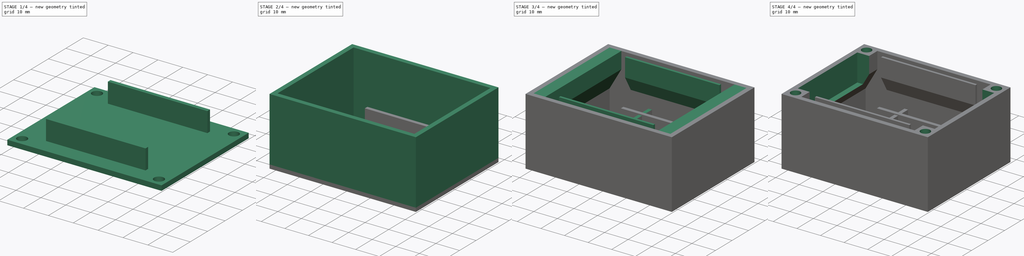
[diagram: build sequence overview — one tinted view per stage of 4, left to right]
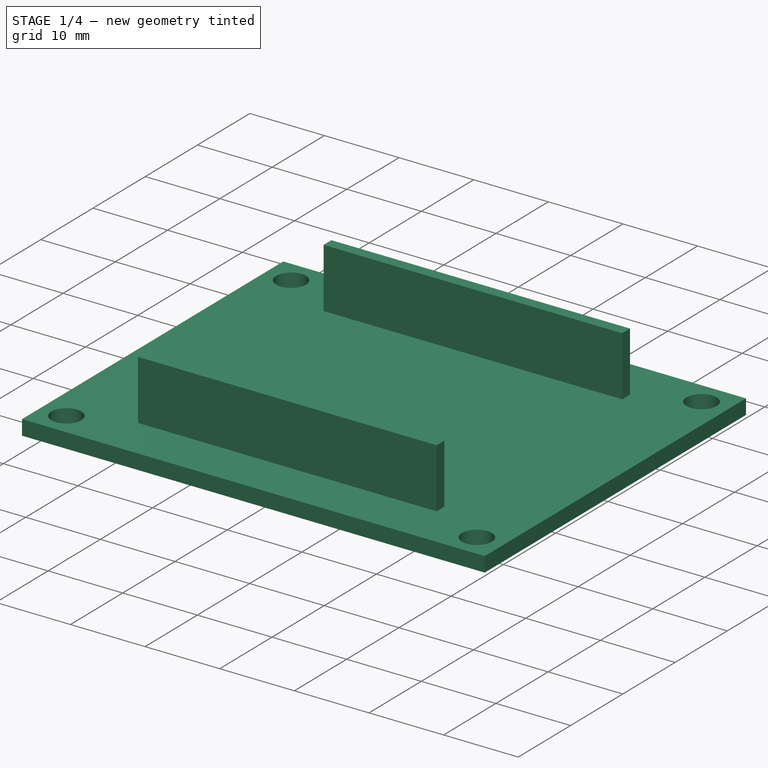
[diagram: stage 1 of 4 — iso view after this stage's code; geometry added in this stage tinted green]
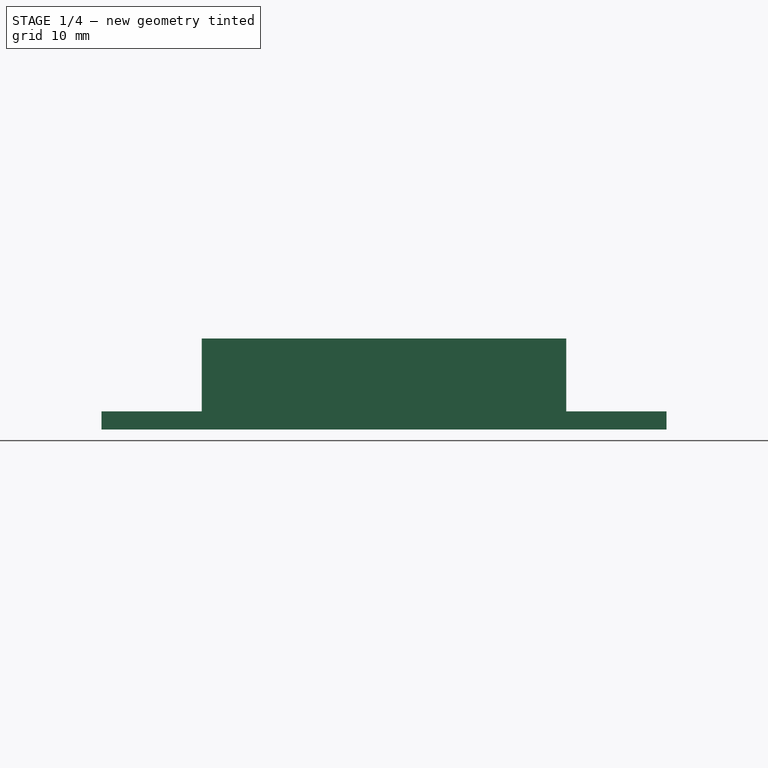
[diagram: stage 1 of 4 — front view after this stage's code; geometry added in this stage tinted green]
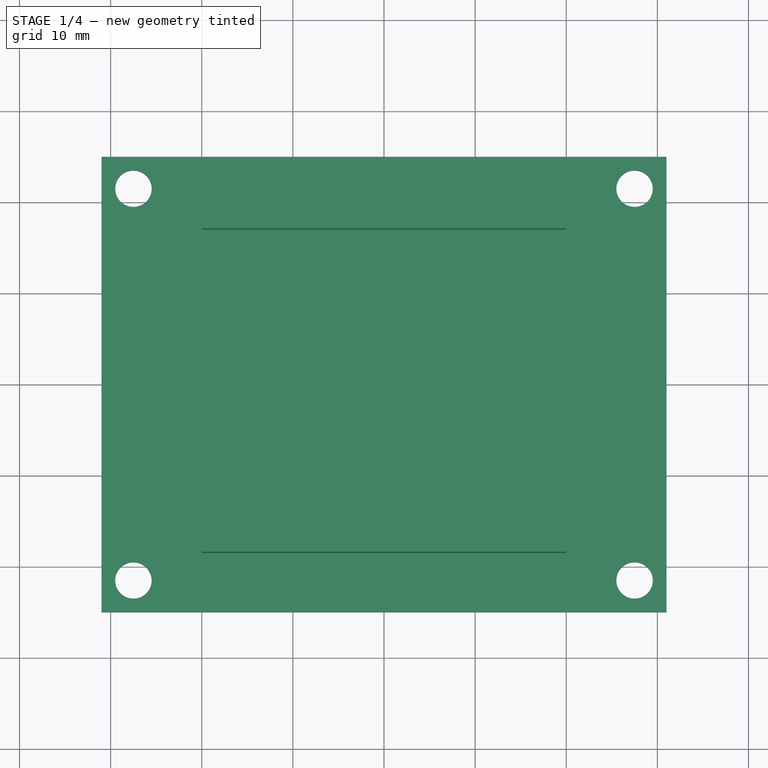
[diagram: stage 1 of 4 — top view after this stage's code; geometry added in this stage tinted green]
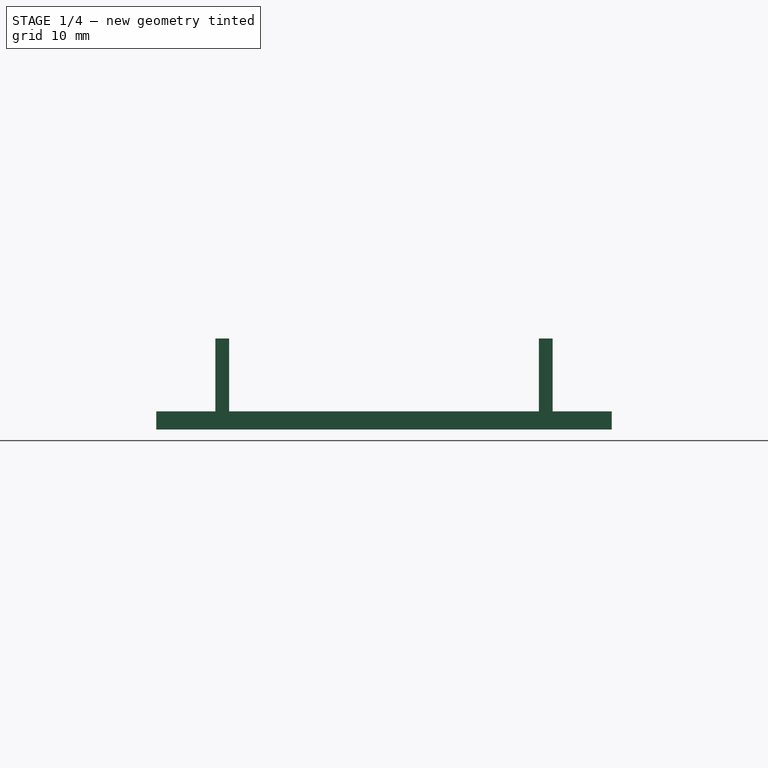
[diagram: stage 1 of 4 — right view after this stage's code; geometry added in this stage tinted green]
FCSTD DOCUMENT  (FreeCAD 0.21R33694 (Git))
Label: RAKTracker-V3
License: All rights reserved
LicenseURL: https://en.wikipedia.org/wiki/All_rights_reserved
objects: Sketcher::SketchObject×12, PartDesign::Pad×10, PartDesign::Body×3, PartDesign::Pocket×2, Spreadsheet::Sheet×1, PartDesign::Plane×1
note: 40 computed .brp shape members not serialized (recipe doc carries the construction recipe); baked Part::Feature solids carry a one-line shape summary decoded from their .brp

FEATURE [PartDesign::Body] Body  label="Box"
  Group = -> [Sketch,Pad,Sketch001,Pad001,Sketch002,Pad002,Sketch003,Pad003,Sketch004,Pad004,DatumPlane,Pad005,Sketch005,Sketch006,Pocket,Sketch007,Pocket001,Sketch008,Pad006]
  Origin = -> Origin
  Tip = -> Pad006
FEATURE [Sketcher::SketchObject] Sketch010  label="BaseSketch001"
  FullyConstrained = true
  MapMode = 5
  Support = -> [XY_Plane002]
  expr: Constraints[28] = <<RAKTrackerSmallSheet>>.BatWidth + 2 * <<RAKTrackerSmallSheet>>.BoxInternalWallThickness
  expr: Constraints[29] = <<RAKTrackerSmallSheet>>.BoxRimWidth + 3 mm
  expr: Constraints[2] = <<RAKTrackerSmallSheet>>.BatLength
  expr: Constraints[4] = <<RAKTrackerSmallSheet>>.BatWidth
  sketch-geometry (12):
    g0: LineSegment StartX=28.5 StartY=17 StartZ=0 EndX=28.5 EndY=-17 EndZ=0
    g1: LineSegment StartX=-28.5 StartY=-17 StartZ=0 EndX=-28.5 EndY=17 EndZ=0
    g2: LineSegment StartX=-18.5 StartY=17 StartZ=0 EndX=-18.5 EndY=18.5 EndZ=0
    g3: LineSegment StartX=-18.5 StartY=18.5 StartZ=0 EndX=18.5 EndY=18.5 EndZ=0
    g4: LineSegment StartX=18.5 StartY=18.5 StartZ=0 EndX=18.5 EndY=17 EndZ=0
    g5: LineSegment StartX=18.5 StartY=-17 StartZ=0 EndX=18.5 EndY=-18.5 EndZ=0
    g6: LineSegment StartX=18.5 StartY=-18.5 StartZ=0 EndX=-18.5 EndY=-18.5 EndZ=0
    g7: LineSegment StartX=-18.5 StartY=-18.5 StartZ=0 EndX=-18.5 EndY=-17 EndZ=0
    g8: LineSegment StartX=-28.5 StartY=17 StartZ=0 EndX=-18.5 EndY=17 EndZ=0
    g9: LineSegment StartX=18.5 StartY=17 StartZ=0 EndX=28.5 EndY=17 EndZ=0
    g10: LineSegment StartX=28.5 StartY=-17 StartZ=0 EndX=18.5 EndY=-17 EndZ=0
    g11: LineSegment StartX=-18.5 StartY=-17 StartZ=0 EndX=-28.5 EndY=-17 EndZ=0
  constraints (33):
    c: Vertical(g0)
    c: Vertical(g1)
    c: DistanceX(g1,g0) = 57
    c: Symmetric(g1,g0,g-1)
    c: DistanceY(g1,g1) = 34
    c: Vertical(g2)
    c: Coincident(g3,g2)
    c: Horizontal(g3)
    c: Coincident(g4,g3)
    c: Vertical(g4)
    c: Coincident(g7,g6)
    c: Vertical(g7)
    c: Vertical(g5)
    c: Horizontal(g6)
    c: Coincident(g8,g1)
    c: Coincident(g8,g2)
    c: Horizontal(g8)
    c: Coincident(g9,g4)
    c: Coincident(g9,g0)
    c: Horizontal(g9)
    c: Coincident(g10,g0)
    c: Coincident(g10,g5)
    c: Horizontal(g10)
    c: Coincident(g11,g7)
    c: Coincident(g11,g1)
    c: Horizontal(g11)
    c: Symmetric(g2,g5,g-1)
    c: Coincident(g5,g6)
    c: DistanceY(g6,g2) = 37
    c: DistanceX(g8,g8) = 10
    c: Symmetric(g2,g7,g-1)
    c: Horizontal(g4,g2)
    c: Equal(g9,g8)
FEATURE [PartDesign::Pad] Pad008  label="BatCaseBase"
  Direction = (0,0,1)
  Length = 1.5
  Length2 = 10
  Profile = -> Sketch010
  ReferenceAxis = -> Sketch010 [N_Axis]
  Type = 0
  expr: Length = <<RAKTrackerSmallSheet>>.BoxInternalWallThickness
FEATURE [Sketcher::SketchObject] Sketch011  label="BatCaseWallSketch"
  ExternalGeometry = -> [Sketch010]
  FullyConstrained = true
  MapMode = 5
  Placement = pos=(0,0,0) rot=(0.57735,0.57735,0.57735;2.0944rad)
  Support = -> [YZ_Plane002]
  expr: Constraints[18] = <<RAKTrackerSmallSheet>>.BoxInternalWallThickness
  expr: Constraints[20] = <<RAKTrackerSmallSheet>>.BatHeight
  sketch-geometry (8):
    g0: LineSegment StartX=-18.5 StartY=10 StartZ=0 EndX=-17 EndY=10 EndZ=0
    g1: LineSegment StartX=-17 StartY=10 StartZ=0 EndX=-17 EndY=-1.07e-14 EndZ=0
    g2: LineSegment StartX=-17 StartY=-1.07e-14 StartZ=0 EndX=-18.5 EndY=-1.07e-14 EndZ=0
    g3: LineSegment StartX=-18.5 StartY=-1.07e-14 StartZ=0 EndX=-18.5 EndY=10 EndZ=0
    g4: LineSegment StartX=17 StartY=10 StartZ=0 EndX=18.5 EndY=10 EndZ=0
    g5: LineSegment StartX=18.5 StartY=10 StartZ=0 EndX=18.5 EndY=0 EndZ=0
    g6: LineSegment StartX=18.5 StartY=0 StartZ=0 EndX=17 EndY=0 EndZ=0
    g7: LineSegment StartX=17 StartY=0 StartZ=0 EndX=17 EndY=10 EndZ=0
  constraints (22):
    c: Coincident(g0,g1)
    c: Coincident(g1,g2)
    c: Coincident(g2,g3)
    c: Coincident(g3,g0)
    c: Horizontal(g0)
    c: Horizontal(g2)
    c: Vertical(g1)
    c: Vertical(g3)
    c: Coincident(g4,g5)
    c: Coincident(g5,g6)
    c: Coincident(g6,g7)
    c: Coincident(g7,g4)
    c: Horizontal(g4)
    c: Horizontal(g6)
    c: Vertical(g5)
    c: Vertical(g7)
    c: Coincident(g5,g-4)
    c: Coincident(g2,g-3)
    c: DistanceX(g0,g0) = 1.5
    c: Equal(g0,g4)
    c: DistanceY(g1,g1) = 10
    c: Horizontal(g0,g4)
FEATURE [PartDesign::Pad] Pad009  label="BatCaseWall"
  BaseFeature = -> Pad008
  Direction = (1,-2e-16,3e-16)
  Length = 40
  Length2 = 10
  Midplane = true
  Profile = -> Sketch011
  ReferenceAxis = -> Sketch011 [N_Axis]
  Type = 0
  expr: Length = <<RAKTrackerSmallSheet>>.BatLength - (2 * <<RAKTrackerSmallSheet>>.BoxRimWidth + 3 mm)
FEATURE [PartDesign::Body] Body002  label="BatCase"
  Group = -> [Sketch010,Pad008,Sketch011,Pad009]
  Origin = -> Origin002
  Placement = pos=(0,0,62) rot=(0,0,1;0rad)
  Tip = -> Pad009
FEATURE [Sketcher::SketchObject] Sketch012  label="LidBaseSketch"
  FullyConstrained = true
  MapMode = 5
  Support = -> [XY_Plane003]
  expr: Constraints[10] = <<RAKTrackerSmallSheet>>.BoxLength
  expr: Constraints[11] = <<RAKTrackerSmallSheet>>.BoxWidth
  expr: Constraints[16] = <<RAKTrackerSmallSheet>>.BoxRimWidth / 2
  expr: Constraints[17] = <<RAKTrackerSmallSheet>>.BoxRimWidth / 2
  expr: Constraints[18] = <<RAKTrackerSmallSheet>>.BoxRimWidth / 2
  expr: Constraints[19] = <<RAKTrackerSmallSheet>>.BoxRimWidth / 2
  expr: Constraints[23] = <<RAKTrackerSmallSheet>>.LidScrewHoleDia
  sketch-geometry (9):
    g0: LineSegment StartX=31 StartY=-25 StartZ=0 EndX=31 EndY=25 EndZ=0
    g1: LineSegment StartX=31 StartY=25 StartZ=0 EndX=-31 EndY=25 EndZ=0
    g2: LineSegment StartX=-31 StartY=25 StartZ=0 EndX=-31 EndY=-25 EndZ=0
    g3: LineSegment StartX=-31 StartY=-25 StartZ=0 EndX=31 EndY=-25 EndZ=0
    g4: GeomPoint X=0 Y=0 Z=0
    g5: Circle CenterX=-27.5 CenterY=21.5 CenterZ=0 NormalX=0 NormalY=0 NormalZ=1 AngleXU=0 Radius=2
    g6: Circle CenterX=27.5 CenterY=21.5 CenterZ=0 NormalX=0 NormalY=0 NormalZ=1 AngleXU=0 Radius=2
    g7: Circle CenterX=-27.5 CenterY=-21.5 CenterZ=0 NormalX=0 NormalY=0 NormalZ=1 AngleXU=0 Radius=2
    g8: Circle CenterX=27.5 CenterY=-21.5 CenterZ=0 NormalX=0 NormalY=0 NormalZ=1 AngleXU=0 Radius=2
  constraints (24):
    c: Coincident(g0,g1)
    c: Coincident(g1,g2)
    c: Coincident(g2,g3)
    c: Coincident(g3,g0)
    c: Horizontal(g1)
    c: Horizontal(g3)
    c: Vertical(g0)
    c: Vertical(g2)
    c: Symmetric(g1,g0,g4)
    c: Coincident(g4,g-1)
    c: DistanceX(g1,g1) = 62
    c: DistanceY(g0,g0) = 50
    c: Horizontal(g5,g6)
    c: Vertical(g7,g5)
    c: Horizontal(g8,g7)
    c: Vertical(g6,g8)
    c: DistanceY(g5,g1) = 3.5
    c: DistanceX(g1,g5) = 3.5
    c: DistanceY(g0,g8) = 3.5
    c: DistanceX(g8,g0) = 3.5
    c: Equal(g5,g6)
    c: Equal(g5,g8)
    c: Equal(g5,g7)
    c: Diameter(g5) = 4
FEATURE [PartDesign::Pad] Pad010  label="LidBase"
  Direction = (0,0,1)
  Length = 2
  Length2 = 10
  Profile = -> Sketch012
  ReferenceAxis = -> Sketch012 [N_Axis]
  Type = 0
FEATURE [PartDesign::Body] Body003  label="Lid"
  Group = -> [Sketch012,Pad010]
  Origin = -> Origin003
  Tip = -> Pad010
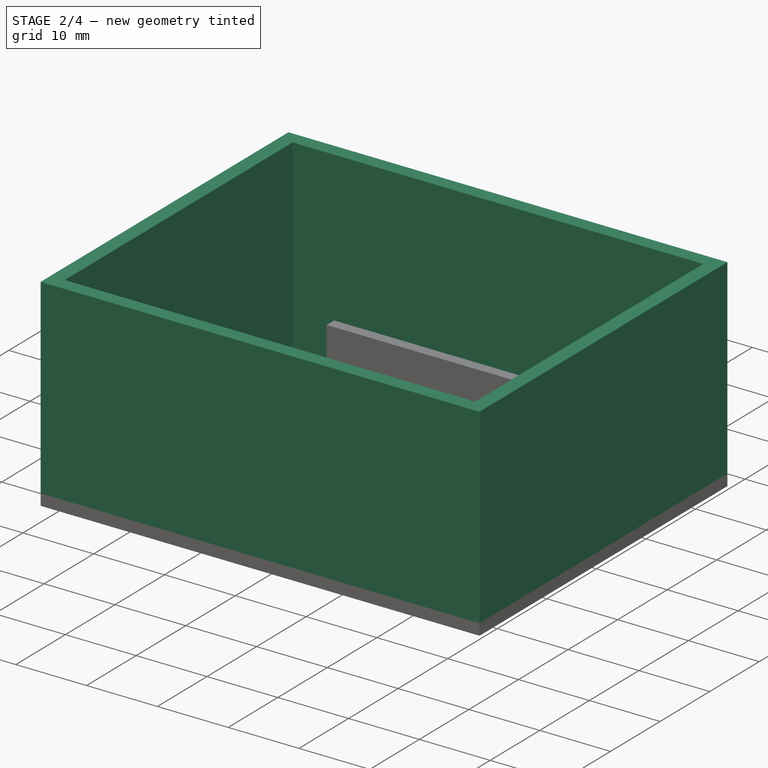
[diagram: stage 2 of 4 — iso view after this stage's code; geometry added in this stage tinted green]
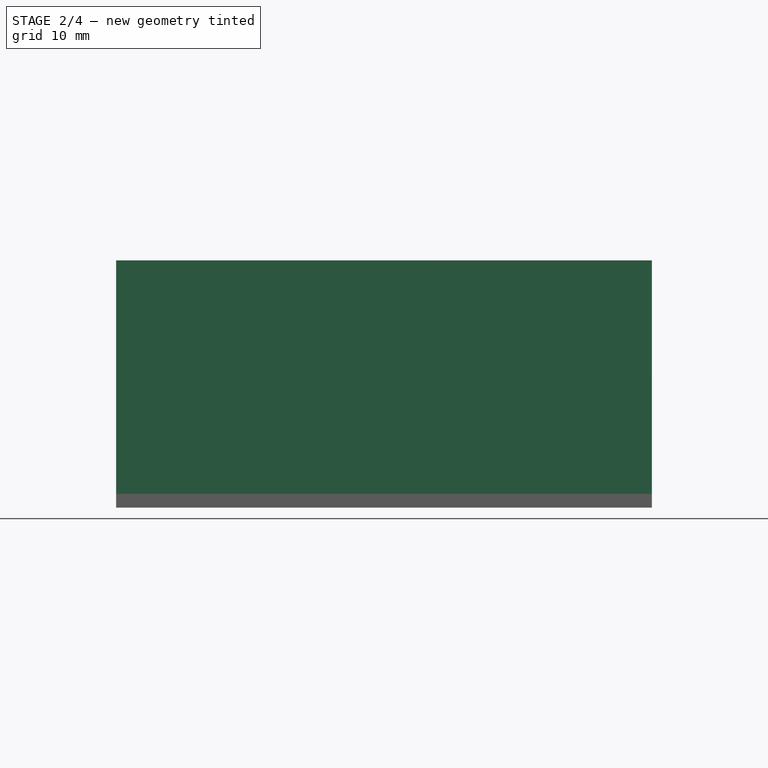
[diagram: stage 2 of 4 — front view after this stage's code; geometry added in this stage tinted green]
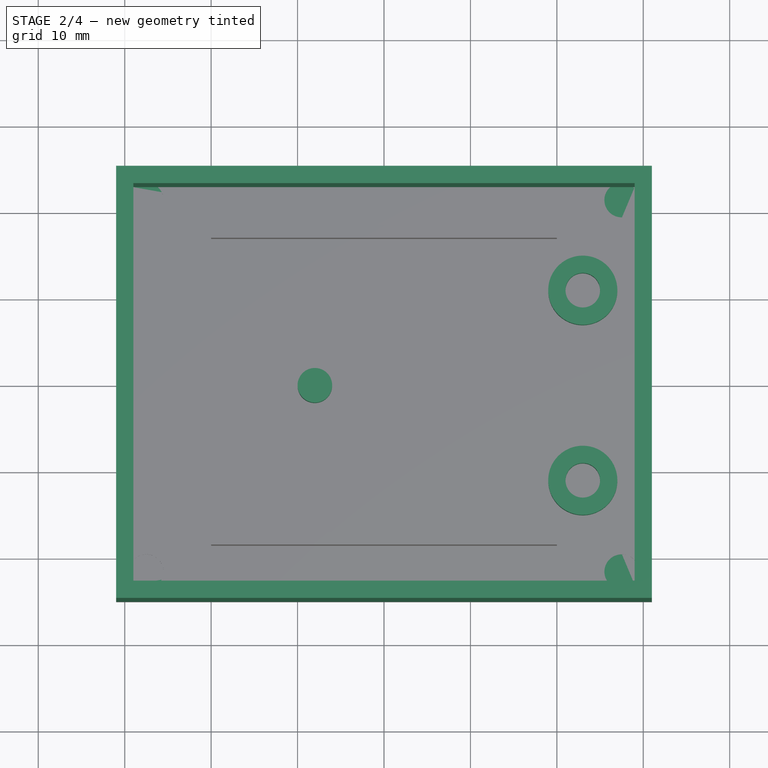
[diagram: stage 2 of 4 — top view after this stage's code; geometry added in this stage tinted green]
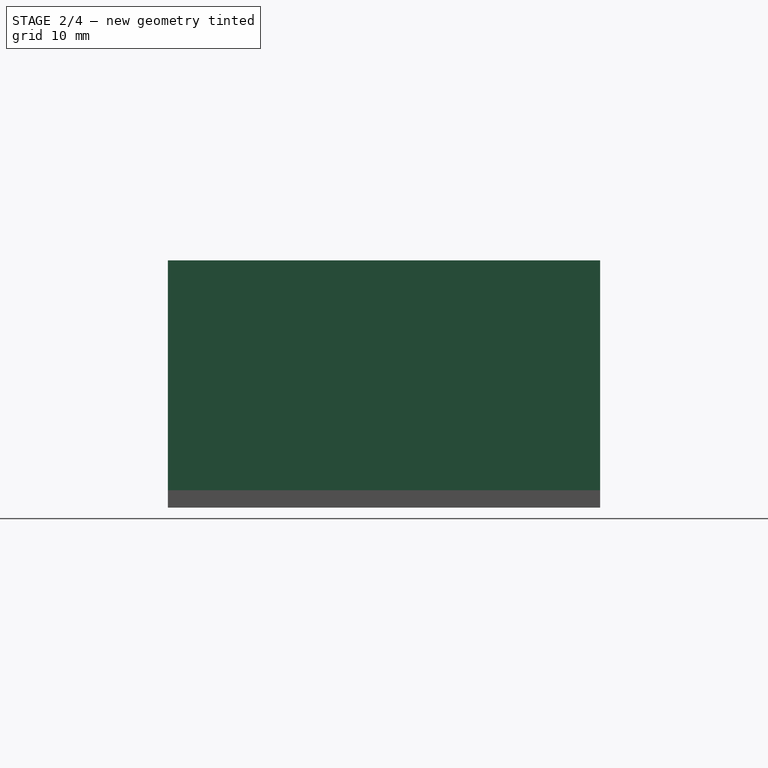
[diagram: stage 2 of 4 — right view after this stage's code; geometry added in this stage tinted green]
FEATURE [Sketcher::SketchObject] Sketch  label="BaseSketch"
  FullyConstrained = true
  MapMode = 5
  Support = -> [XY_Plane]
  expr: Constraints[10] = <<RAKTrackerSmallSheet>>.BoxWidth
  expr: Constraints[9] = <<RAKTrackerSmallSheet>>.BoxLength
  sketch-geometry (4):
    g0: LineSegment StartX=-31 StartY=25 StartZ=0 EndX=31 EndY=25 EndZ=0
    g1: LineSegment StartX=31 StartY=25 StartZ=0 EndX=31 EndY=-25 EndZ=0
    g2: LineSegment StartX=31 StartY=-25 StartZ=0 EndX=-31 EndY=-25 EndZ=0
    g3: LineSegment StartX=-31 StartY=-25 StartZ=0 EndX=-31 EndY=25 EndZ=0
  constraints (11):
    c: Coincident(g0,g1)
    c: Coincident(g1,g2)
    c: Coincident(g2,g3)
    c: Coincident(g3,g0)
    c: Horizontal(g0)
    c: Horizontal(g2)
    c: Vertical(g1)
    c: Vertical(g3)
    c: Symmetric(g0,g1,g-1)
    c: DistanceX(g0,g0) = 62
    c: DistanceY(g1,g1) = 50
FEATURE [Spreadsheet::Sheet] Spreadsheet  label="RAKTrackerSmallSheet"
  cells = A1='Box Dimensions; D1='Components; A3='Box Length; B3(BoxLength)==62 mm; D3='Solar Panel Length; E3==70.5 mm; A4='Box Width; B4(BoxWidth)==50 mm; D4='Solar Panel Width; E4==55.5 mm; A5='Box floor; B5(BoxFloorHeight)==1.6 mm; D5='Solar Panel height; E5==2.5 mm; A6='Box wall thickness length (including screws); B6(BoxWallThicknessLength)==2 mm; A7='Box wall thickness width (including screws); B7(BoxWallThicknessWidth)==2 mm; D7='Battery Length; E7(BatLength)==57 mm; A8='Box Screw Hole Dia; B8(BoxScrewHoleDia)==2.8 mm; D8='Battery Width; E8(BatWidth)==34 mm; A9='Box Screw Height/Depth; B9(BoxScrewHeight)==8 mm; D9='Battery Height; E9(BatHeight)==10 mm; A10='Box Height; B10(BoxHeight)==B5 + E18 + E9; D10='Battery Holder Height; E10(BatHolderHeight)==E9 + B5 + 0.5 mm; A11='Box Corner Radisu; B11(BoxCornerRadius)==1 mm; D11='Battery Holder Dia; E11(BatHolderDia)==8 mm; A12='Box Internal Wall Width; B12(BoxInternalWallThickness)==1.5 mm; D12='Battery Holder Hole Dia; E12(BatHolderHoleDia)==4 mm; A13='Box Screw Hole distance from Side; B13(BoxScrewHoleDistance)==3 mm; A14='Box internal Length; B14(BoxInternalLength)==B3 - 2 * B7; A15='Box Internal Width; B15(BoxInternalWidth)==B4 - 2 * B6; D15='PCB Mount Hole Distance (length); E15(PCBMountHoleDistanceLength)==31 mm; D16='PCB Length; E16==36 mm; D17='PCB Width; E17==30.5 mm; A18='Seal Depth; B18(SealDepth)==0.6 mm; D18='PCB Height; E18==17 mm; A19='Seal width; B19(SealWidth)==1 mm; D19='PCB Mount Height; E19(PCBMountHeight)==4.5 mm + B5; A20='Seal Corner Radius; B20(SealCornerRadius)==2.5 mm; D20='PCB Mount From Side; E20(PCBMountFromSide)==6 mm; D21='PCB Mount Hole Dia; E21(PCBMountHoleDia)==4 mm; A22='GPS Mount Corner Radius; B22(GPSMountCornerRadius)==1.5 mm; D22='PCB Mount Dia; E22(PCBMountDia)==8 mm; A23='GPS Mount Wall Thickness; B23(GPSMountWallThickness)==1.5 mm; D23='PCB Mount Hole DIstance (side); E23(PCBMountHoleDistance)==22 mm; D24='GPS Length and Width; E24(GPSLength)==16 mm; A25='Lid Screw Hole DIa; B25(LidScrewHoleDia)==4 mm; D25='GPS Height; E25(GPSHeight)==8 mm; A26='Lid Height; B26(LidHeight)==1.5 mm; A27='Lid Screw Hole ; B27(LidScrewHoleDepth)==5 mm; D27='Antenna Length; E27(AntLength)==40 mm; A28='Box Upper rim width; B28(BoxRimWidth)==7 mm; D28='Antenne width; E28(AntWidth)==7.5 mm; A29='Box Upper rim min vertical height; B29(BoxRimHeight)==7 mm; D29='Antenna Height; E29(AntHeight)==2.5 mm; D31='Strap WIdth; E31==26 mm; D32='Strap Holder Dia; E32==5 mm; D33='Strap Holder hole distance; E33(StrapHoleDistance)==34 mm; F33='MIN = E31 + (E32/2); D35='BraceWidth; E35(BraceWidth)==8 mm
FEATURE [PartDesign::Pad] Pad  label="Base"
  Direction = (0,0,1)
  Length = 1.6
  Length2 = 10
  Profile = -> Sketch
  ReferenceAxis = -> Sketch [N_Axis]
  Type = 0
  expr: Length = <<RAKTrackerSmallSheet>>.BoxFloorHeight
FEATURE [Sketcher::SketchObject] Sketch001  label="WallSketch"
  ExternalGeometry = -> [Sketch]
  FullyConstrained = true
  MapMode = 5
  Support = -> [XY_Plane]
  expr: Constraints[19] = <<RAKTrackerSmallSheet>>.BoxWallThicknessWidth
  expr: Constraints[20] = <<RAKTrackerSmallSheet>>.BoxWallThicknessLength
  sketch-geometry (8):
    g0: LineSegment StartX=-31 StartY=25 StartZ=0 EndX=31 EndY=25 EndZ=0
    g1: LineSegment StartX=31 StartY=25 StartZ=0 EndX=31 EndY=-25 EndZ=0
    g2: LineSegment StartX=31 StartY=-25 StartZ=0 EndX=-31 EndY=-25 EndZ=0
    g3: LineSegment StartX=-31 StartY=-25 StartZ=0 EndX=-31 EndY=25 EndZ=0
    g4: LineSegment StartX=-29 StartY=23 StartZ=0 EndX=29 EndY=23 EndZ=0
    g5: LineSegment StartX=29 StartY=23 StartZ=0 EndX=29 EndY=-23 EndZ=0
    g6: LineSegment StartX=29 StartY=-23 StartZ=0 EndX=-29 EndY=-23 EndZ=0
    g7: LineSegment StartX=-29 StartY=-23 StartZ=0 EndX=-29 EndY=23 EndZ=0
  constraints (21):
    c: Coincident(g0,g1)
    c: Coincident(g1,g2)
    c: Coincident(g2,g3)
    c: Coincident(g3,g0)
    c: Horizontal(g0)
    c: Horizontal(g2)
    c: Vertical(g1)
    c: Vertical(g3)
    c: Coincident(g0,g-5)
    c: Coincident(g1,g-6)
    c: Coincident(g4,g5)
    c: Coincident(g5,g6)
    c: Coincident(g6,g7)
    c: Coincident(g7,g4)
    c: Horizontal(g4)
    c: Horizontal(g6)
    c: Vertical(g5)
    c: Vertical(g7)
    c: Symmetric(g4,g5,g-1)
    c: DistanceX(g0,g4) = 2
    c: DistanceY(g4,g0) = 2
FEATURE [PartDesign::Pad] Pad001  label="Walls"
  BaseFeature = -> Pad
  Direction = (0,0,1)
  Length = 28.6
  Length2 = 10
  Profile = -> Sketch001
  ReferenceAxis = -> Sketch001 [N_Axis]
  Type = 0
  expr: Length = <<RAKTrackerSmallSheet>>.BoxHeight
FEATURE [Sketcher::SketchObject] Sketch002  label="PCBMountSketch"
  ExternalGeometry = -> [Sketch001]
  FullyConstrained = true
  MapMode = 5
  Support = -> [XY_Plane]
  expr: Constraints[10] = <<RAKTrackerSmallSheet>>.PCBMountHoleDistanceLength
  expr: Constraints[2] = Spreadsheet.PCBMountFromSide
  expr: Constraints[3] = <<RAKTrackerSmallSheet>>.PCBMountHoleDistance
  expr: Constraints[5] = <<RAKTrackerSmallSheet>>.PCBMountHoleDia
  expr: Constraints[7] = <<RAKTrackerSmallSheet>>.PCBMountDia
  sketch-geometry (5):
    g0: Circle CenterX=23 CenterY=11 CenterZ=0 NormalX=0 NormalY=0 NormalZ=1 AngleXU=0 Radius=2
    g1: Circle CenterX=23 CenterY=11 CenterZ=0 NormalX=0 NormalY=0 NormalZ=1 AngleXU=0 Radius=4
    g2: Circle CenterX=23 CenterY=-11 CenterZ=0 NormalX=0 NormalY=0 NormalZ=1 AngleXU=0 Radius=2
    g3: Circle CenterX=23 CenterY=-11 CenterZ=0 NormalX=0 NormalY=0 NormalZ=1 AngleXU=0 Radius=4
    g4: Circle CenterX=-8 CenterY=0 CenterZ=0 NormalX=0 NormalY=0 NormalZ=1 AngleXU=0 Radius=2
  constraints (12):
    c: Coincident(g1,g0)
    c: Coincident(g3,g2)
    c: DistanceX(g0,g-3) = 6
    c: DistanceY(g2,g0) = 22
    c: Equal(g0,g2)
    c: Diameter(g0) = 4
    c: Equal(g1,g3)
    c: Diameter(g1) = 8
    c: Symmetric(g0,g2,g-1)
    c: PointOnObject(g4,g-1)
    c: DistanceX(g4,g2) = 31
    c: Equal(g0,g4)
FEATURE [PartDesign::Pad] Pad002  label="PCBMounts"
  BaseFeature = -> Pad001
  Direction = (0,0,1)
  Length = 6.1
  Length2 = 10
  Profile = -> Sketch002
  ReferenceAxis = -> Sketch002 [N_Axis]
  Type = 0
  expr: Length = <<RAKTrackerSmallSheet>>.PCBMountHeight
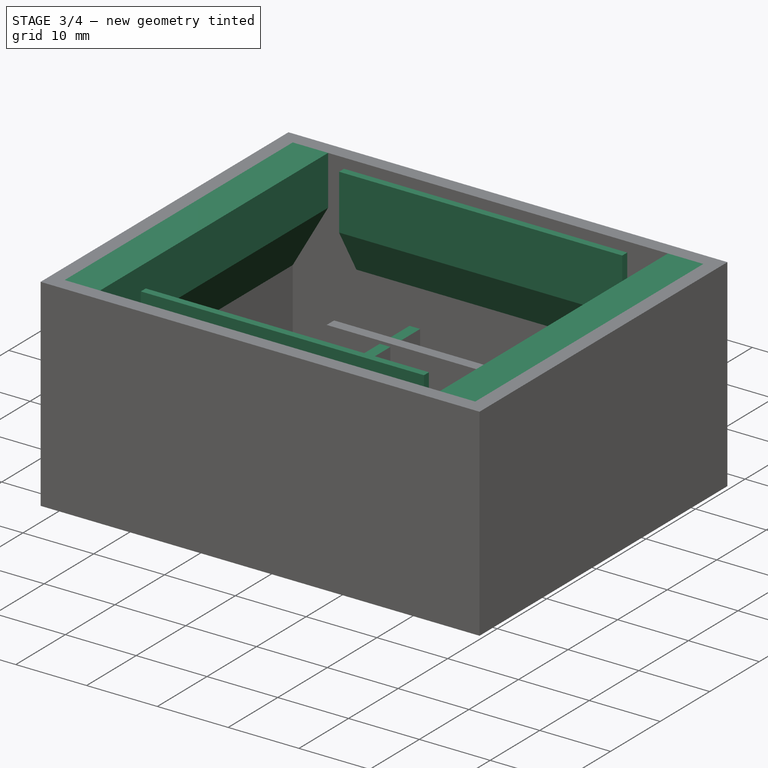
[diagram: stage 3 of 4 — iso view after this stage's code; geometry added in this stage tinted green]
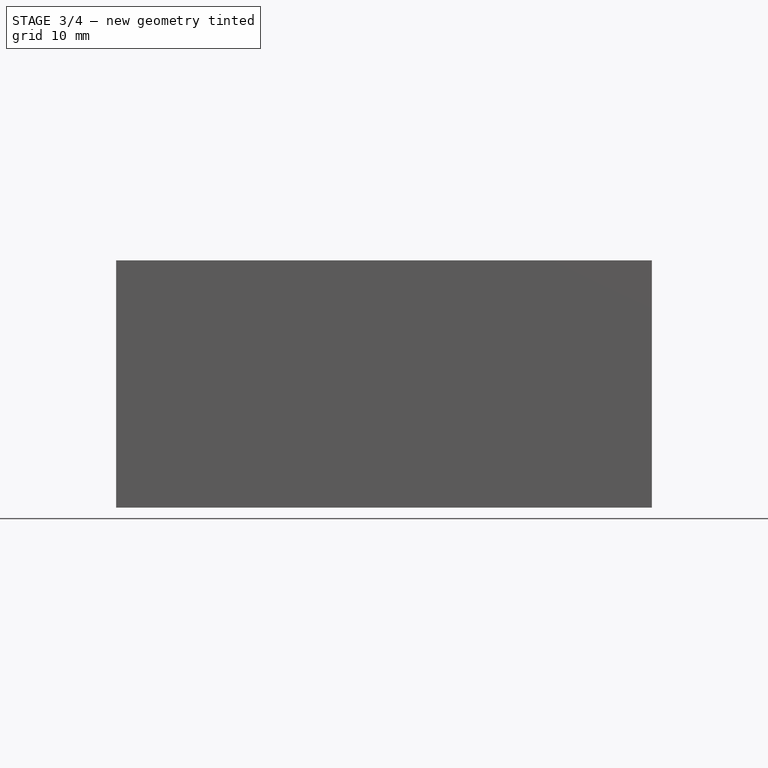
[diagram: stage 3 of 4 — front view after this stage's code; geometry added in this stage tinted green]
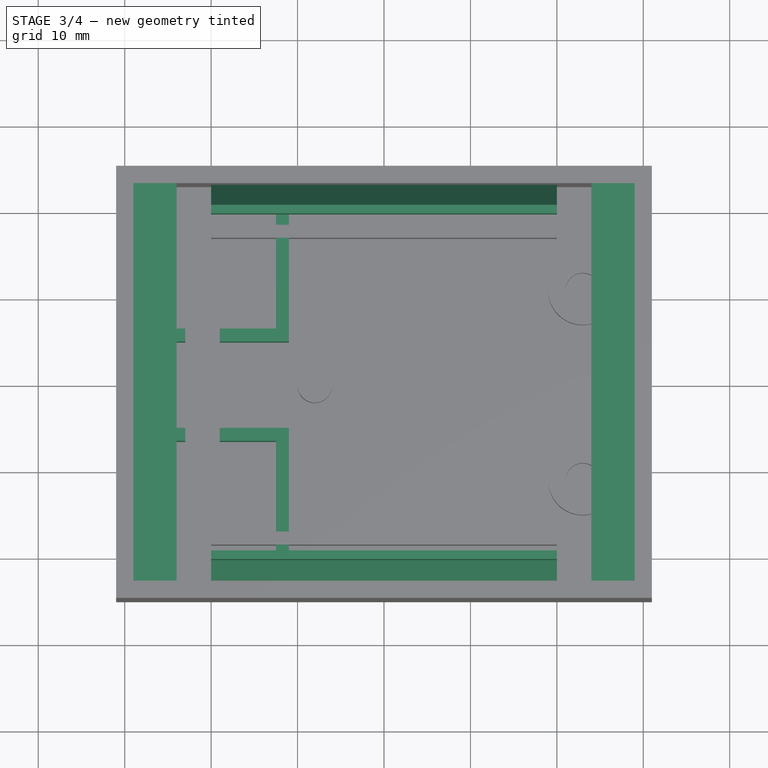
[diagram: stage 3 of 4 — top view after this stage's code; geometry added in this stage tinted green]
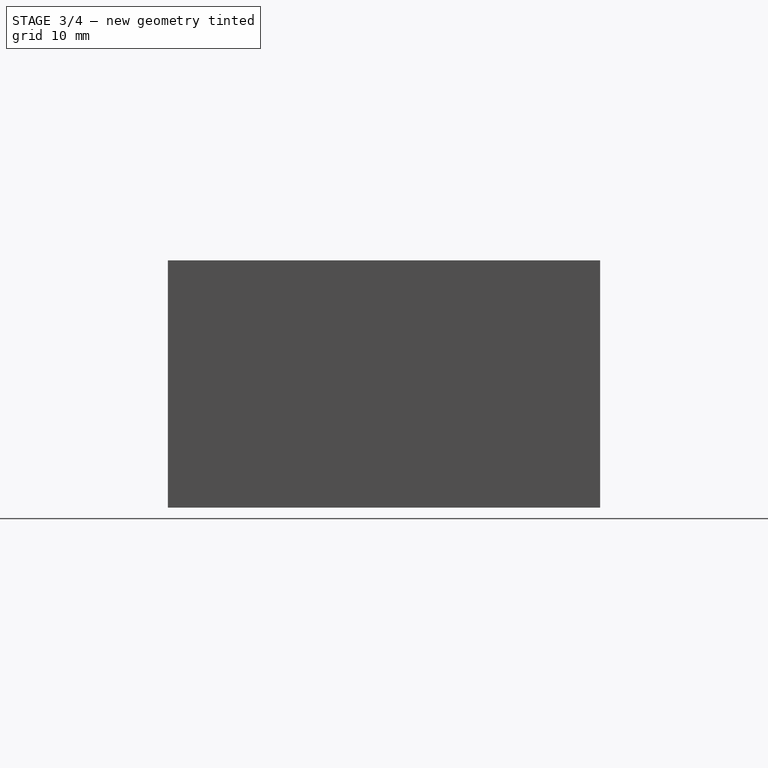
[diagram: stage 3 of 4 — right view after this stage's code; geometry added in this stage tinted green]
FEATURE [Sketcher::SketchObject] Sketch003  label="AntMountTopSketch"
  ExternalGeometry = -> [Sketch]
  FullyConstrained = true
  MapMode = 5
  Placement = pos=(0,0,0) rot=(0.57735,0.57735,0.57735;2.0944rad)
  Support = -> [YZ_Plane]
  expr: Constraints[11] = <<RAKTrackerSmallSheet>>.AntWidth
  expr: Constraints[12] = <<RAKTrackerSmallSheet>>.AntHeight
  expr: Constraints[16] = <<RAKTrackerSmallSheet>>.BoxHeight
  expr: Constraints[17] = <<RAKTrackerSmallSheet>>.BoxWallThicknessLength
  expr: Constraints[32] = <<RAKTrackerSmallSheet>>.BoxWallThicknessLength
  expr: Constraints[34] = <<RAKTrackerSmallSheet>>.AntHeight
  sketch-geometry (12):
    g0: LineSegment StartX=-23 StartY=14.7699 StartZ=0 EndX=-19.5 EndY=20.8321 EndZ=0
    g1: LineSegment StartX=-19.5 StartY=20.8321 StartZ=0 EndX=-19.5 EndY=28.6 EndZ=0
    g2: LineSegment StartX=-19.5 StartY=28.6 StartZ=0 EndX=-20.5 EndY=28.6 EndZ=0
    g3: LineSegment StartX=-23 StartY=14.7699 StartZ=0 EndX=-23 EndY=16.7699 EndZ=0
    g4: LineSegment StartX=-23 StartY=16.7699 StartZ=0 EndX=-20.5 EndY=21.1 EndZ=0
    g5: LineSegment StartX=-20.5 StartY=21.1 StartZ=0 EndX=-20.5 EndY=28.6 EndZ=0
    g6: LineSegment StartX=19.5 StartY=28.6 StartZ=0 EndX=19.5 EndY=20.8321 EndZ=0
    g7: LineSegment StartX=19.5 StartY=20.8321 StartZ=0 EndX=23 EndY=14.7699 EndZ=0
    g8: LineSegment StartX=23 StartY=14.7699 StartZ=0 EndX=23 EndY=16.7699 EndZ=0
    g9: LineSegment StartX=23 StartY=16.7699 StartZ=0 EndX=20.5 EndY=21.1 EndZ=0
    g10: LineSegment StartX=20.5 StartY=21.1 StartZ=0 EndX=20.5 EndY=28.6 EndZ=0
    g11: LineSegment StartX=20.5 StartY=28.6 StartZ=0 EndX=19.5 EndY=28.6 EndZ=0
  constraints (36):
    c: Vertical(g1)
    c: Coincident(g3,g0)
    c: Coincident(g4,g3)
    c: Coincident(g5,g2)
    c: Vertical(g5)
    c: Horizontal(g2)
    c: Coincident(g4,g5)
    c: Angle(g0,g3) = 0.523599
    c: Coincident(g1,g0)
    c: Angle(g3,g4) = 2.61799
    c: DistanceX(g2,g2) = 1
    c: DistanceY(g5,g5) = 7.5
    c: DistanceX(g3,g4) = 2.5
    c: DistanceY(g3,g3) = 2
    c: Coincident(g1,g2)
    c: Vertical(g3)
    c: DistanceY(g-3,g2) = 28.6
    c: DistanceX(g-3,g0) = 2
    c: Vertical(g6)
    c: Coincident(g7,g6)
    c: Vertical(g8)
    c: Vertical(g10)
    c: Coincident(g11,g6)
    c: Horizontal(g11)
    c: Angle(g8,g7) = 0.523599
    c: Angle(g9,g8) = 2.61799
    c: Coincident(g10,g9)
    c: Coincident(g8,g9)
    c: Coincident(g8,g7)
    c: Coincident(g11,g10)
    c: Equal(g2,g11)
    c: Equal(g5,g10)
    c: DistanceX(g7,g-3) = 2
    c: Horizontal(g1,g6)
    c: DistanceX(g9,g8) = 2.5
    c: Equal(g3,g8)
FEATURE [PartDesign::Pad] Pad003  label="AntMountTop"
  BaseFeature = -> Pad002
  Direction = (1,-2e-16,3e-16)
  Length = 40
  Length2 = 10
  Midplane = true
  Profile = -> Sketch003
  ReferenceAxis = -> Sketch003 [N_Axis]
  Type = 0
  expr: Length = <<RAKTrackerSmallSheet>>.AntLength
FEATURE [Sketcher::SketchObject] Sketch004  label="GPSMountSketch"
  ExternalGeometry = -> [Sketch]
  FullyConstrained = true
  MapMode = 5
  Support = -> [XY_Plane]
  expr: Constraints[13] = <<RAKTrackerSmallSheet>>.GPSLength + <<RAKTrackerSmallSheet>>.BoxWallThicknessWidth + 0.5 mm
  expr: Constraints[14] = <<RAKTrackerSmallSheet>>.BoxInternalWallThickness
  expr: Constraints[15] = <<RAKTrackerSmallSheet>>.BoxInternalWallThickness
  expr: Constraints[16] = <<RAKTrackerSmallSheet>>.GPSLength + <<RAKTrackerSmallSheet>>.BoxWallThicknessLength + 0.5 mm
  expr: Constraints[35] = <<RAKTrackerSmallSheet>>.GPSLength / 2
  expr: Constraints[58] = <<RAKTrackerSmallSheet>>.GPSLength / 2
  sketch-geometry (20):
    g0: LineSegment StartX=-11 StartY=25 StartZ=0 EndX=-12.5 EndY=25 EndZ=0
    g1: LineSegment StartX=-11 StartY=5 StartZ=0 EndX=-11 EndY=25 EndZ=0
    g2: LineSegment StartX=-19 StartY=6.5 StartZ=0 EndX=-19 EndY=5 EndZ=0
    g3: LineSegment StartX=-19 StartY=5 StartZ=0 EndX=-11 EndY=5 EndZ=0
    g4: LineSegment StartX=-19 StartY=6.5 StartZ=0 EndX=-12.5 EndY=6.5 EndZ=0
    g5: LineSegment StartX=-12.5 StartY=25 StartZ=0 EndX=-12.5 EndY=6.5 EndZ=0
    g6: LineSegment StartX=-11 StartY=-25 StartZ=0 EndX=-11 EndY=-5 EndZ=0
    g7: LineSegment StartX=-11 StartY=-5 StartZ=0 EndX=-19 EndY=-5 EndZ=0
    g8: LineSegment StartX=-19 StartY=-5 StartZ=0 EndX=-19 EndY=-6.5 EndZ=0
    g9: LineSegment StartX=-19 StartY=-6.5 StartZ=0 EndX=-12.5 EndY=-6.5 EndZ=0
    g10: LineSegment StartX=-12.5 StartY=-6.5 StartZ=0 EndX=-12.5 EndY=-25 EndZ=0
    g11: LineSegment StartX=-12.5 StartY=-25 StartZ=0 EndX=-11 EndY=-25 EndZ=0
    g12: LineSegment StartX=-31 StartY=6.5 StartZ=0 EndX=-23 EndY=6.5 EndZ=0
    g13: LineSegment StartX=-23 StartY=6.5 StartZ=0 EndX=-23 EndY=5 EndZ=0
    g14: LineSegment StartX=-23 StartY=5 StartZ=0 EndX=-31 EndY=5 EndZ=0
    g15: LineSegment StartX=-31 StartY=5 StartZ=0 EndX=-31 EndY=6.5 EndZ=0
    g16: LineSegment StartX=-31 StartY=-5 StartZ=0 EndX=-23 EndY=-5 EndZ=0
    g17: LineSegment StartX=-23 StartY=-5 StartZ=0 EndX=-23 EndY=-6.5 EndZ=0
    g18: LineSegment StartX=-23 StartY=-6.5 StartZ=0 EndX=-31 EndY=-6.5 EndZ=0
    g19: LineSegment StartX=-31 StartY=-6.5 StartZ=0 EndX=-31 EndY=-5 EndZ=0
  constraints (60):
    c: Coincident(g1,g0)
    c: Horizontal(g0)
    c: Vertical(g1)
    c: PointOnObject(g0,g-3)
    c: Coincident(g2,g3)
    c: Horizontal(g3)
    c: Vertical(g2)
    c: Coincident(g4,g2)
    c: Horizontal(g4)
    c: Coincident(g1,g3)
    c: Coincident(g5,g0)
    c: Coincident(g5,g4)
    c: Vertical(g5)
    c: DistanceY(g5,g5) = 18.5
    c: DistanceX(g0,g0) = 1.5
    c: DistanceY(g2,g2) = 1.5
    c: DistanceX(g-4,g0) = 18.5
    c: PointOnObject(g6,g-5)
    c: Vertical(g6)
    c: Horizontal(g7)
    c: Coincident(g8,g7)
    c: Horizontal(g9)
    c: Vertical(g10)
    c: Coincident(g11,g10)
    c: Coincident(g11,g6)
    c: Horizontal(g11)
    c: Equal(g2,g8)
    c: Vertical(g8)
    c: Coincident(g8,g9)
    c: Coincident(g9,g10)
    c: Coincident(g6,g7)
    c: Equal(g5,g10)
    c: Equal(g0,g11)
    c: Vertical(g1,g6)
    c: Equal(g4,g9)
    c: DistanceX(g7,g6) = 8
    c: Coincident(g12,g13)
    c: Coincident(g13,g14)
    c: Coincident(g14,g15)
    c: Coincident(g15,g12)
    c: Horizontal(g12)
    c: Horizontal(g14)
    c: Vertical(g13)
    c: Vertical(g15)
    c: PointOnObject(g12,g-4)
    c: Coincident(g16,g17)
    c: Coincident(g17,g18)
    c: Coincident(g18,g19)
    c: Coincident(g19,g16)
    c: Horizontal(g16)
    c: Horizontal(g18)
    c: Vertical(g17)
    c: Vertical(g19)
    c: PointOnObject(g16,g-4)
    c: Equal(g2,g13)
    c: Equal(g8,g17)
    c: Horizontal(g16,g7)
    c: Horizontal(g12,g2)
    c: DistanceX(g12,g12) = 8
    c: Vertical(g13,g16)
FEATURE [PartDesign::Pad] Pad004  label="GPSMount"
  BaseFeature = -> Pad003
  Direction = (0,0,1)
  Length = 9.6
  Length2 = 10
  Profile = -> Sketch004
  ReferenceAxis = -> Sketch004 [N_Axis]
  Type = 0
  expr: Length = <<RAKTrackerSmallSheet>>.GPSHeight + <<RAKTrackerSmallSheet>>.BoxFloorHeight
FEATURE [PartDesign::Plane] DatumPlane  label="TopOfBox"
  Length = 73.1355
  MapMode = 2
  Placement = pos=(0,0,28.6) rot=(0,0,1;0rad)
  ResizeMode = 0
  Width = 61.1355
  expr: .Placement.Base.z = <<RAKTrackerSmallSheet>>.BoxHeight
FEATURE [Sketcher::SketchObject] Sketch005  label="LidMountSketch"
  ExternalGeometry = -> [Sketch,DatumPlane]
  FullyConstrained = true
  MapMode = 2
  Placement = pos=(0,0,0) rot=(1,0,0;1.5708rad)
  expr: Constraints[8] = <<RAKTrackerSmallSheet>>.BoxRimWidth
  expr: Constraints[9] = <<RAKTrackerSmallSheet>>.BoxRimHeight
  sketch-geometry (8):
    g0: LineSegment StartX=-31 StartY=9.47564 StartZ=0 EndX=-31 EndY=28.6 EndZ=0
    g1: LineSegment StartX=-31 StartY=28.6 StartZ=0 EndX=-24 EndY=28.6 EndZ=0
    g2: LineSegment StartX=-24 StartY=28.6 StartZ=0 EndX=-24 EndY=21.6 EndZ=0
    g3: LineSegment StartX=-24 StartY=21.6 StartZ=0 EndX=-31 EndY=9.47564 EndZ=0
    g4: LineSegment StartX=31 StartY=9.47564 StartZ=0 EndX=31 EndY=28.6 EndZ=0
    g5: LineSegment StartX=31 StartY=28.6 StartZ=0 EndX=24 EndY=28.6 EndZ=0
    g6: LineSegment StartX=24 StartY=28.6 StartZ=0 EndX=24 EndY=21.6 EndZ=0
    g7: LineSegment StartX=24 StartY=21.6 StartZ=0 EndX=31 EndY=9.47564 EndZ=0
  constraints (24):
    c: Vertical(g0)
    c: Coincident(g1,g0)
    c: Horizontal(g1)
    c: Vertical(g2)
    c: Coincident(g3,g2)
    c: Coincident(g3,g0)
    c: Angle(g3,g0) = 0.523599
    c: Coincident(g2,g1)
    c: DistanceX(g1,g1) = 7
    c: DistanceY(g2,g2) = 7
    c: Coincident(g5,g4)
    c: Horizontal(g5)
    c: Coincident(g6,g5)
    c: Vertical(g6)
    c: Coincident(g7,g6)
    c: Coincident(g7,g4)
    c: Equal(g1,g5)
    c: Angle(g4,g7) = 0.523599
    c: Equal(g2,g6)
    c: PointOnObject(g0,g-4)
    c: Vertical(g4)
    c: Horizontal(g5,g1)
    c: Vertical(g0,g-6)
    c: Vertical(g4,g-6)
FEATURE [Sketcher::SketchObject] Sketch006  label="LidBatterySpaceSketch"
  ExternalGeometry = -> [Sketch]
  FullyConstrained = true
  MapMode = 5
  Placement = pos=(0,0,28.6) rot=(0,0,1;0rad)
  Support = -> [DatumPlane]
  expr: Constraints[10] = <<RAKTrackerSmallSheet>>.BoxWidth - 2 * <<RAKTrackerSmallSheet>>.BoxRimWidth
  expr: Constraints[9] = <<RAKTrackerSmallSheet>>.BoxLength - 2 * <<RAKTrackerSmallSheet>>.BoxWallThicknessWidth
  sketch-geometry (4):
    g0: LineSegment StartX=-29 StartY=18 StartZ=0 EndX=29 EndY=18 EndZ=0
    g1: LineSegment StartX=29 StartY=18 StartZ=0 EndX=29 EndY=-18 EndZ=0
    g2: LineSegment StartX=29 StartY=-18 StartZ=0 EndX=-29 EndY=-18 EndZ=0
    g3: LineSegment StartX=-29 StartY=-18 StartZ=0 EndX=-29 EndY=18 EndZ=0
  constraints (11):
    c: Coincident(g0,g1)
    c: Coincident(g1,g2)
    c: Coincident(g2,g3)
    c: Coincident(g3,g0)
    c: Horizontal(g0)
    c: Horizontal(g2)
    c: Vertical(g1)
    c: Vertical(g3)
    c: Symmetric(g0,g1,g-1)
    c: DistanceX(g0,g0) = 58
    c: DistanceY(g1,g1) = 36
FEATURE [Sketcher::SketchObject] Sketch007  label="LidScrewSketch"
  ExternalGeometry = -> [Sketch]
  FullyConstrained = true
  MapMode = 5
  Placement = pos=(0,0,28.6) rot=(0,0,1;0rad)
  Support = -> [DatumPlane]
  expr: Constraints[10] = <<RAKTrackerSmallSheet>>.BoxRimWidth / 2
  expr: Constraints[11] = <<RAKTrackerSmallSheet>>.BoxRimWidth / 2
  expr: Constraints[3] = <<RAKTrackerSmallSheet>>.LidScrewHoleDia
  expr: Constraints[8] = <<RAKTrackerSmallSheet>>.BoxRimWidth / 2
  expr: Constraints[9] = <<RAKTrackerSmallSheet>>.BoxRimWidth / 2
  sketch-geometry (4):
    g0: Circle CenterX=-27.5 CenterY=21.5 CenterZ=0 NormalX=0 NormalY=0 NormalZ=1 AngleXU=0 Radius=2
    g1: Circle CenterX=27.5 CenterY=21.5 CenterZ=0 NormalX=0 NormalY=0 NormalZ=1 AngleXU=0 Radius=2
    g2: Circle CenterX=27.5 CenterY=-21.5 CenterZ=0 NormalX=0 NormalY=0 NormalZ=1 AngleXU=0 Radius=2
    g3: Circle CenterX=-27.5 CenterY=-21.5 CenterZ=0 NormalX=0 NormalY=0 NormalZ=1 AngleXU=0 Radius=2
  constraints (12):
    c: Equal(g0,g1)
    c: Equal(g0,g2)
    c: Equal(g0,g3)
    c: Diameter(g0) = 4
    c: Horizontal(g0,g1)
    c: Vertical(g3,g0)
    c: Vertical(g1,g2)
    c: Horizontal(g2,g3)
    c: DistanceX(g-4,g0) = 3.5
    c: DistanceY(g1,g-5) = 3.5
    c: DistanceX(g2,g-6) = 3.5
    c: DistanceY(g-6,g3) = 3.5
FEATURE [PartDesign::Pad] Pad005  label="LidMount"
  BaseFeature = -> Pad004
  Direction = (0,-1,2e-16)
  Length = 50
  Length2 = 10
  Midplane = true
  Profile = -> Sketch005
  ReferenceAxis = -> Sketch005 [N_Axis]
  Type = 0
  expr: Length = <<RAKTrackerSmallSheet>>.BoxWidth
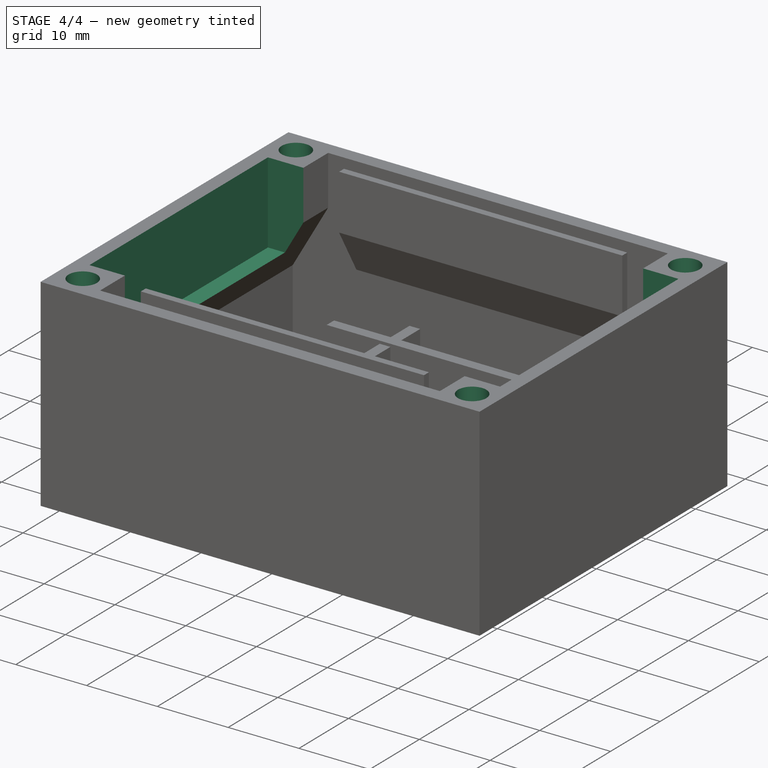
[diagram: stage 4 of 4 — iso view after this stage's code; geometry added in this stage tinted green]
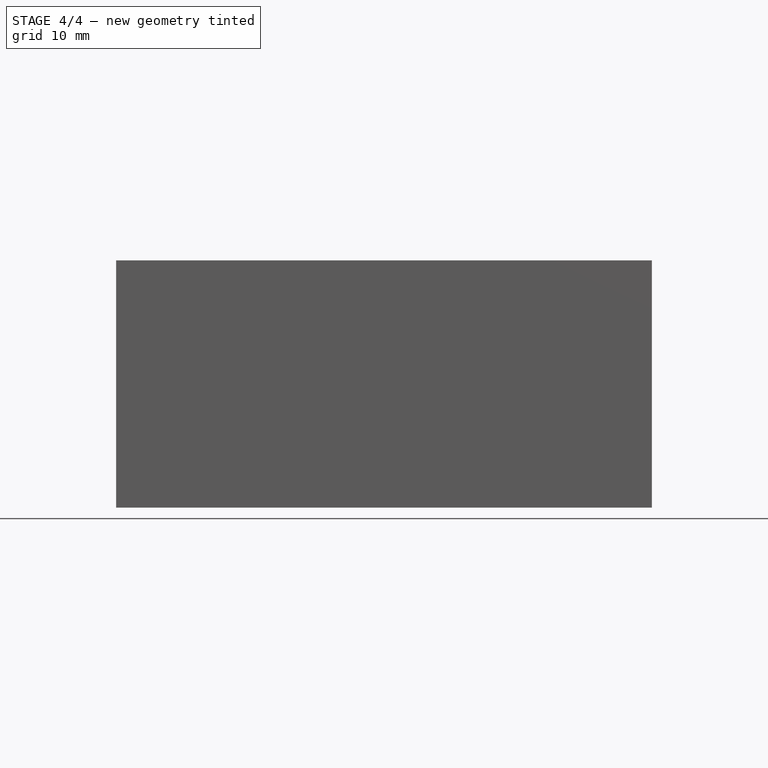
[diagram: stage 4 of 4 — front view after this stage's code; geometry added in this stage tinted green]
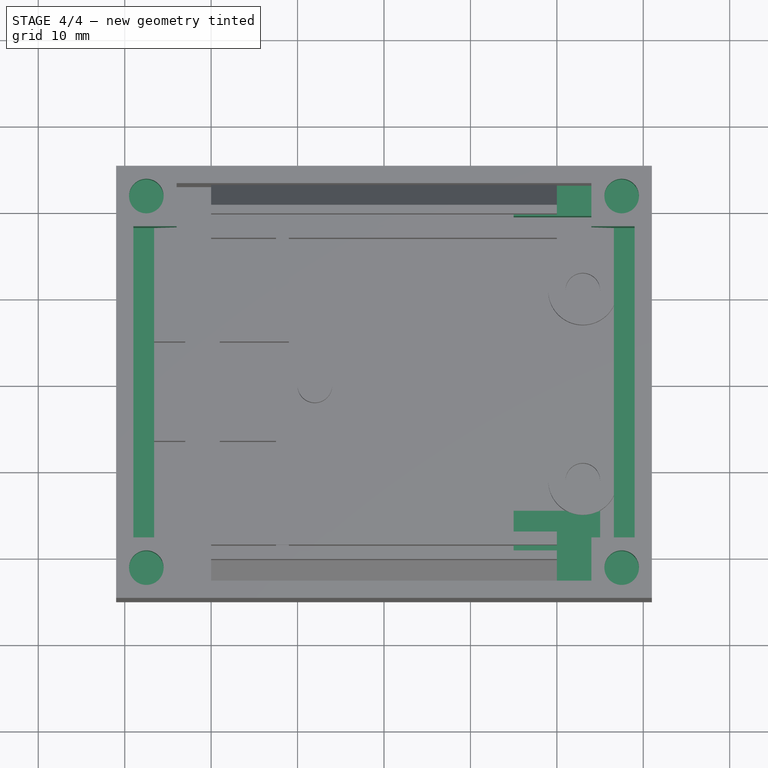
[diagram: stage 4 of 4 — top view after this stage's code; geometry added in this stage tinted green]
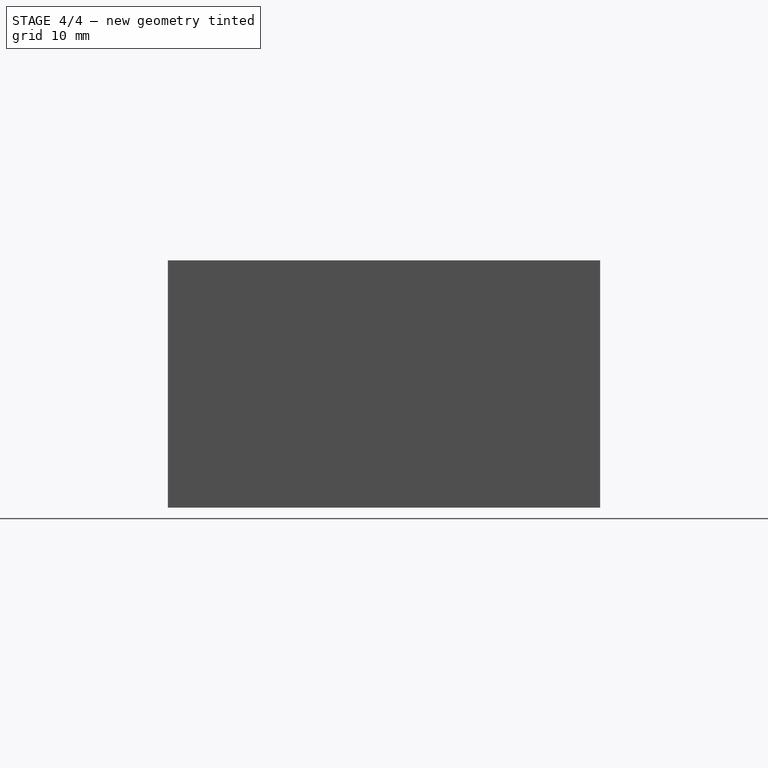
[diagram: stage 4 of 4 — right view after this stage's code; geometry added in this stage tinted green]
FEATURE [PartDesign::Pocket] Pocket  label="LidBatterySpace"
  BaseFeature = -> Pad005
  Direction = (0,0,-1)
  Length = 11.5
  Length2 = 5
  Profile = -> Sketch006
  ReferenceAxis = -> Sketch006 [N_Axis]
  Type = 0
  expr: Length = <<RAKTrackerSmallSheet>>.BatHeight + <<RAKTrackerSmallSheet>>.BoxInternalWallThickness
FEATURE [PartDesign::Pocket] Pocket001  label="LidScrew"
  BaseFeature = -> Pocket
  Direction = (0,0,-1)
  Length = 5
  Length2 = 5
  Profile = -> Sketch007
  ReferenceAxis = -> Sketch007 [N_Axis]
  Type = 0
  expr: Length = <<RAKTrackerSmallSheet>>.LidScrewHoleDepth
FEATURE [Sketcher::SketchObject] Sketch008  label="AntMountBottomSketch"
  ExternalGeometry = -> [Sketch001]
  FullyConstrained = true
  MapMode = 5
  Placement = pos=(0,0,0) rot=(0.57735,0.57735,0.57735;2.0944rad)
  Support = -> [YZ_Plane]
  expr: Constraints[12] = 1 mm
  expr: Constraints[17] = <<RAKTrackerSmallSheet>>.AntWidth + <<RAKTrackerSmallSheet>>.BoxWallThicknessLength
  expr: Constraints[31] = 1 mm
  expr: Constraints[33] = <<RAKTrackerSmallSheet>>.AntWidth + <<RAKTrackerSmallSheet>>.BoxFloorHeight + 0.5 mm
  expr: Constraints[35] = <<RAKTrackerSmallSheet>>.AntHeight + <<RAKTrackerSmallSheet>>.BoxWallThicknessLength
  expr: Constraints[9] = <<RAKTrackerSmallSheet>>.AntHeight + <<RAKTrackerSmallSheet>>.BoxFloorHeight
  sketch-geometry (12):
    g0: LineSegment StartX=-25 StartY=5.1 StartZ=0 EndX=-25 EndY=4.1 EndZ=0
    g1: LineSegment StartX=-25 StartY=4.1 StartZ=0 EndX=-15.5 EndY=4.1 EndZ=0
    g2: LineSegment StartX=-15.5 StartY=4.1 StartZ=0 EndX=-15.5 EndY=0 EndZ=0
    g3: LineSegment StartX=-15.5 StartY=0 StartZ=0 EndX=-14.5 EndY=0 EndZ=0
    g4: LineSegment StartX=-14.5 StartY=0 StartZ=0 EndX=-14.5 EndY=5.1 EndZ=0
    g5: LineSegment StartX=-14.5 StartY=5.1 StartZ=0 EndX=-25 EndY=5.1 EndZ=0
    g6: LineSegment StartX=20.5 StartY=0 StartZ=0 EndX=20.5 EndY=9.6 EndZ=0
    g7: LineSegment StartX=20.5 StartY=9.6 StartZ=0 EndX=25 EndY=9.6 EndZ=0
    g8: LineSegment StartX=25 StartY=9.6 StartZ=0 EndX=25 EndY=10.6 EndZ=0
    g9: LineSegment StartX=25 StartY=10.6 StartZ=0 EndX=19.5 EndY=10.6 EndZ=0
    g10: LineSegment StartX=19.5 StartY=10.6 StartZ=0 EndX=19.5 EndY=0 EndZ=0
    g11: LineSegment StartX=19.5 StartY=0 StartZ=0 EndX=20.5 EndY=0 EndZ=0
  constraints (36):
    c: Coincident(g1,g0)
    c: Horizontal(g1)
    c: Coincident(g2,g1)
    c: PointOnObject(g2,g-1)
    c: Vertical(g2)
    c: Coincident(g3,g2)
    c: Horizontal(g3)
    c: Vertical(g4)
    c: Coincident(g5,g0)
    c: DistanceY(g-3,g0) = 4.1
    c: Horizontal(g5)
    c: Vertical(g0)
    c: DistanceY(g0,g0) = 1
    c: DistanceX(g3,g3) = 1
    c: Coincident(g5,g4)
    c: Vertical(g0,g-3)
    c: Coincident(g3,g4)
    c: DistanceX(g1,g1) = 9.5
    c: PointOnObject(g6,g-1)
    c: Vertical(g6)
    c: Coincident(g7,g6)
    c: Horizontal(g7)
    c: Coincident(g8,g7)
    c: Vertical(g8)
    c: Horizontal(g9)
    c: Coincident(g10,g9)
    c: PointOnObject(g10,g-1)
    c: Vertical(g10)
    c: Coincident(g11,g10)
    c: Coincident(g11,g6)
    c: DistanceY(g8,g8) = 1
    c: DistanceX(g11,g11) = 1
    c: Coincident(g8,g9)
    c: DistanceY(g6,g6) = 9.6
    c: Vertical(g7,g-4)
    c: DistanceX(g7,g7) = 4.5
FEATURE [PartDesign::Pad] Pad006  label="AntMountBottom"
  BaseFeature = -> Pocket001
  Direction = (1,-2e-16,3e-16)
  Length = 15
  Length2 = -25
  Profile = -> Sketch008
  ReferenceAxis = -> Sketch008 [N_Axis]
  Type = 4
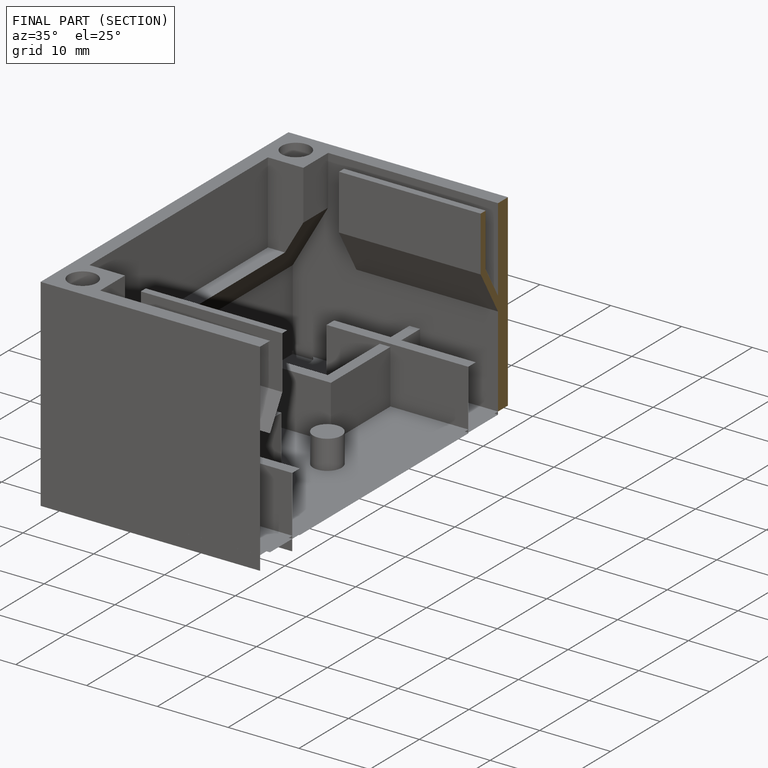
[diagram: finished part — half-section view (interior)]
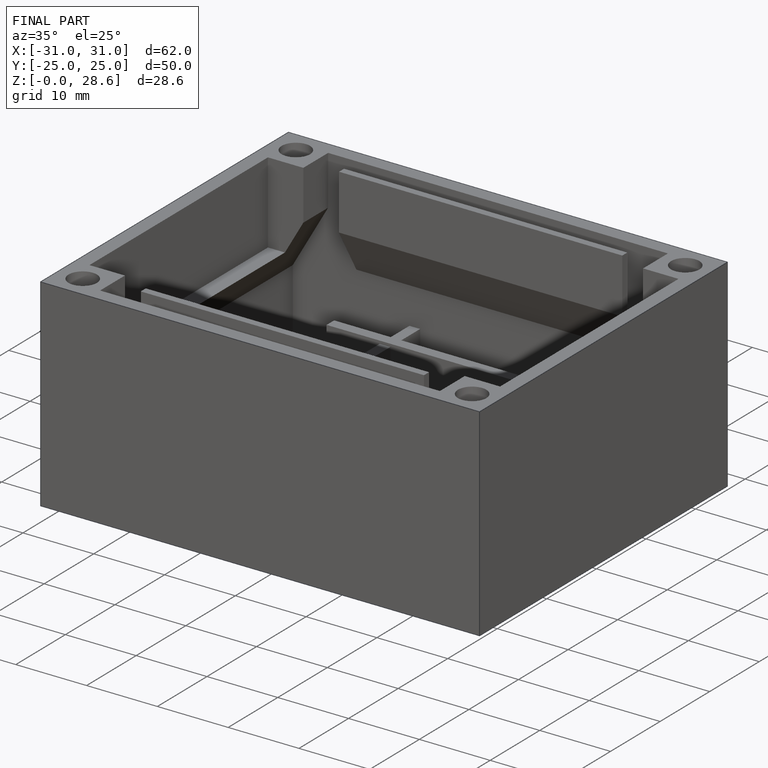
[diagram: finished part — iso view with bounding-box wireframe]
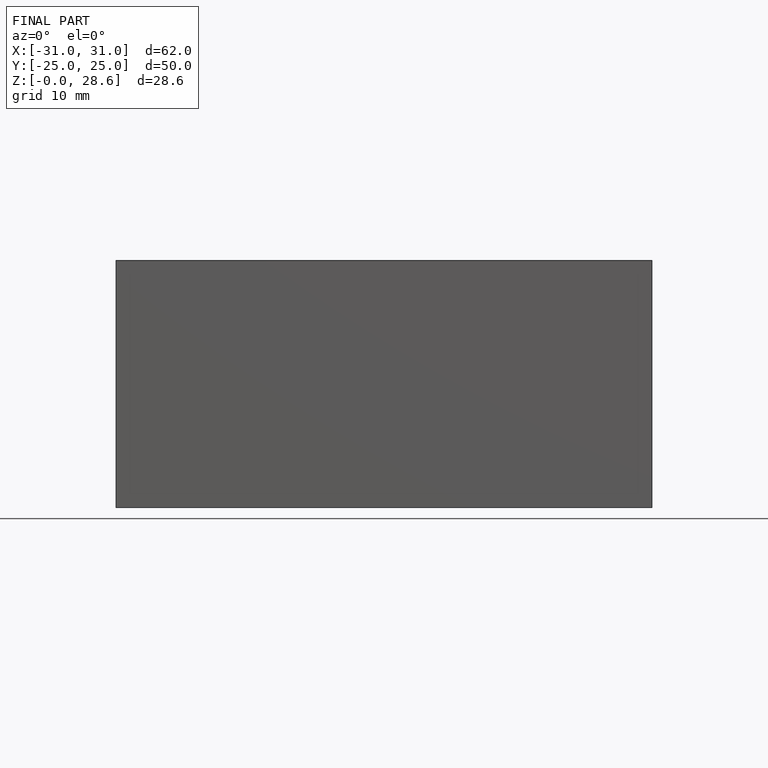
[diagram: finished part — front view with bounding-box wireframe]
